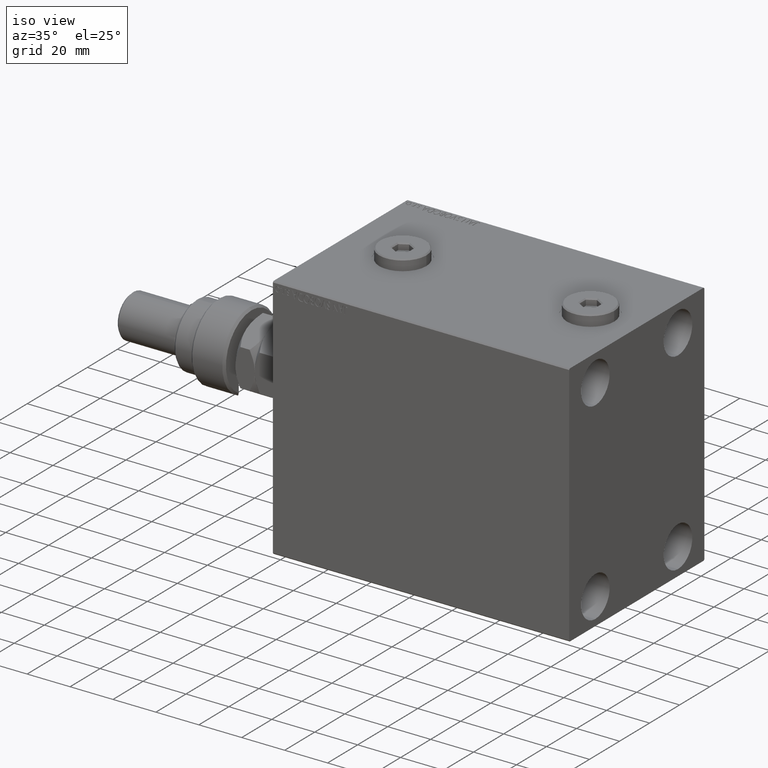
[diagram: clean part render]
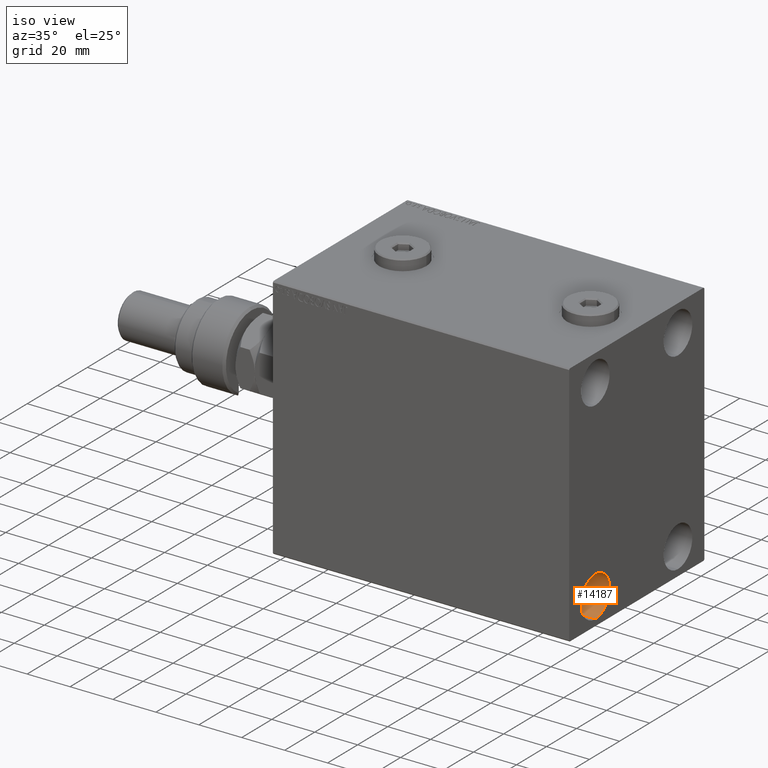
[diagram: same view with one face highlighted and labeled with its STEP entity id]
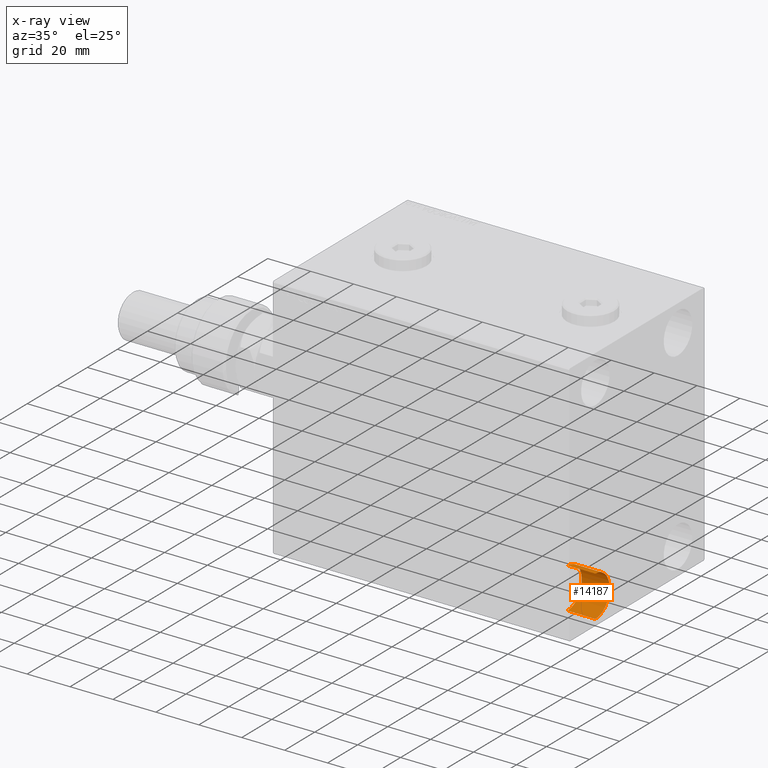
[diagram: x-ray of the same camera — body ghosted, the highlighted face saturated]
A machine part, iso view. The second image highlights one B-rep face of the part: STEP entity #14187.
The next image is the same camera in x-ray: the body ghosted, the highlighted face saturated — about 0% of this face is hidden behind the body in this view.
In plain terms, the highlighted cylindrical surface (edge-blend (fillet) strip) has radius 9.5 mm, axis along (1, 0, 0).
Its self-contained STEP definition (entity closure, byte-faithful):
#213 = AXIS2_PLACEMENT_3D ( 'NONE', #48008, #10761, #28541 ) ;
#707 = CARTESIAN_POINT ( 'NONE',  ( 125.0000000000000000, -27.50000000000000000, -54.49999999999998579 ) ) ;
#1333 = VERTEX_POINT ( 'NONE', #43415 ) ;
#3004 = ORIENTED_EDGE ( 'NONE', *, *, #15385, .T. ) ;
#3708 = VECTOR ( 'NONE', #15779, 1000.000000000000000 ) ;
#4215 = VERTEX_POINT ( 'NONE', #20252 ) ;
#5791 = ORIENTED_EDGE ( 'NONE', *, *, #34277, .F. ) ;
#10761 = DIRECTION ( 'NONE',  ( 1.000000000000000000, -0.000000000000000000, -0.000000000000000000 ) ) ;
#11183 = LINE ( 'NONE', #707, #44575 ) ;
#12552 = VERTEX_POINT ( 'NONE', #19642 ) ;
#13863 = VERTEX_POINT ( 'NONE', #28563 ) ;
#14187 = ADVANCED_FACE ( 'NONE', ( #47297 ), #40231, .F. ) ;
#15385 = EDGE_CURVE ( 'NONE', #4215, #13863, #11183, .T. ) ;
#15779 = DIRECTION ( 'NONE',  ( 1.000000000000000000, -0.000000000000000000, -0.000000000000000000 ) ) ;
#17406 = DIRECTION ( 'NONE',  ( -1.000000000000000000, -0.000000000000000000, -0.000000000000000000 ) ) ;
#18914 = CIRCLE ( 'NONE', #43814, 9.500000000000001776 ) ;
#18939 = CARTESIAN_POINT ( 'NONE',  ( 125.0000000000000000, -27.50000000000000000, -35.49999999999998579 ) ) ;
#19594 = EDGE_CURVE ( 'NONE', #12552, #4215, #18914, .T. ) ;
#19642 = CARTESIAN_POINT ( 'NONE',  ( 125.0000000000000000, -27.50000000000000000, -35.49999999999998579 ) ) ;
#20252 = CARTESIAN_POINT ( 'NONE',  ( 125.0000000000000000, -27.50000000000000000, -54.49999999999998579 ) ) ;
#23088 = ORIENTED_EDGE ( 'NONE', *, *, #19594, .T. ) ;
#25018 = EDGE_CURVE ( 'NONE', #1333, #13863, #45514, .T. ) ;
#28541 = DIRECTION ( 'NONE',  ( 0.000000000000000000, 0.000000000000000000, -1.000000000000000000 ) ) ;
#28563 = CARTESIAN_POINT ( 'NONE',  ( 138.0000000000000000, -27.50000000000000000, -54.49999999999998579 ) ) ;
#28799 = EDGE_LOOP ( 'NONE', ( #5791, #23088, #3004, #30244 ) ) ;
#30244 = ORIENTED_EDGE ( 'NONE', *, *, #25018, .F. ) ;
#30627 = LINE ( 'NONE', #18939, #3708 ) ;
#34277 = EDGE_CURVE ( 'NONE', #12552, #1333, #30627, .T. ) ;
#38546 = AXIS2_PLACEMENT_3D ( 'NONE', #39582, #17406, #43462 ) ;
#38952 = CARTESIAN_POINT ( 'NONE',  ( 125.0000000000000000, -27.50000000000000000, -44.99999999999998579 ) ) ;
#39194 = DIRECTION ( 'NONE',  ( -1.000000000000000000, -0.000000000000000000, -0.000000000000000000 ) ) ;
#39582 = CARTESIAN_POINT ( 'NONE',  ( 138.0000000000000000, -27.50000000000000000, -44.99999999999998579 ) ) ;
#40231 = CYLINDRICAL_SURFACE ( 'NONE', #213, 9.500000000000001776 ) ;
#43415 = CARTESIAN_POINT ( 'NONE',  ( 138.0000000000000000, -27.50000000000000000, -35.49999999999998579 ) ) ;
#43462 = DIRECTION ( 'NONE',  ( 0.000000000000000000, 0.000000000000000000, 1.000000000000000000 ) ) ;
#43814 = AXIS2_PLACEMENT_3D ( 'NONE', #38952, #39194, #46489 ) ;
#44575 = VECTOR ( 'NONE', #45513, 1000.000000000000000 ) ;
#45513 = DIRECTION ( 'NONE',  ( 1.000000000000000000, -0.000000000000000000, -0.000000000000000000 ) ) ;
#45514 = CIRCLE ( 'NONE', #38546, 9.500000000000001776 ) ;
#46489 = DIRECTION ( 'NONE',  ( 0.000000000000000000, 0.000000000000000000, 1.000000000000000000 ) ) ;
#47297 = FACE_OUTER_BOUND ( 'NONE', #28799, .T. ) ;
#48008 = CARTESIAN_POINT ( 'NONE',  ( 125.0000000000000000, -27.50000000000000000, -44.99999999999998579 ) ) ;